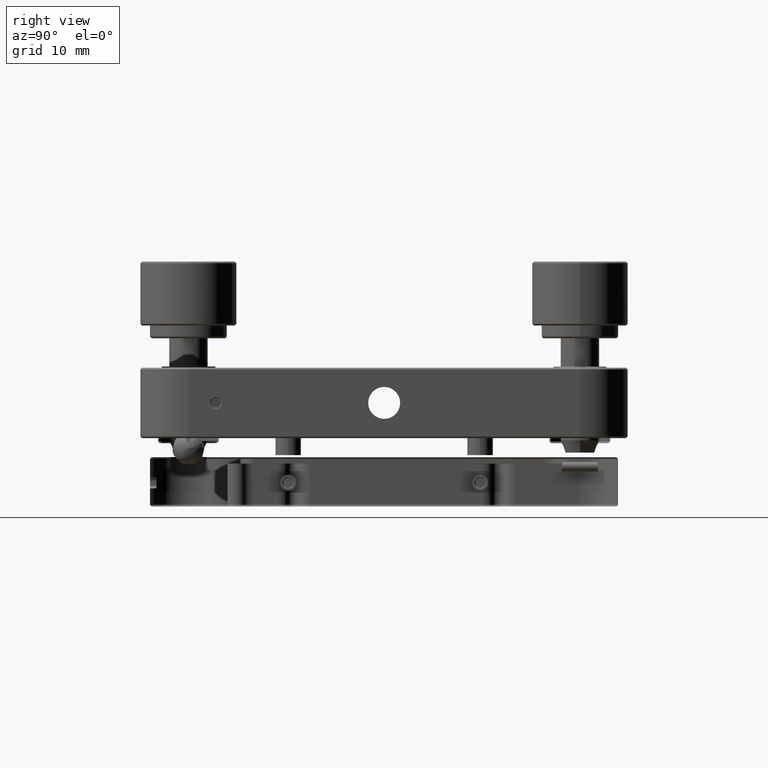
[diagram: clean part render]
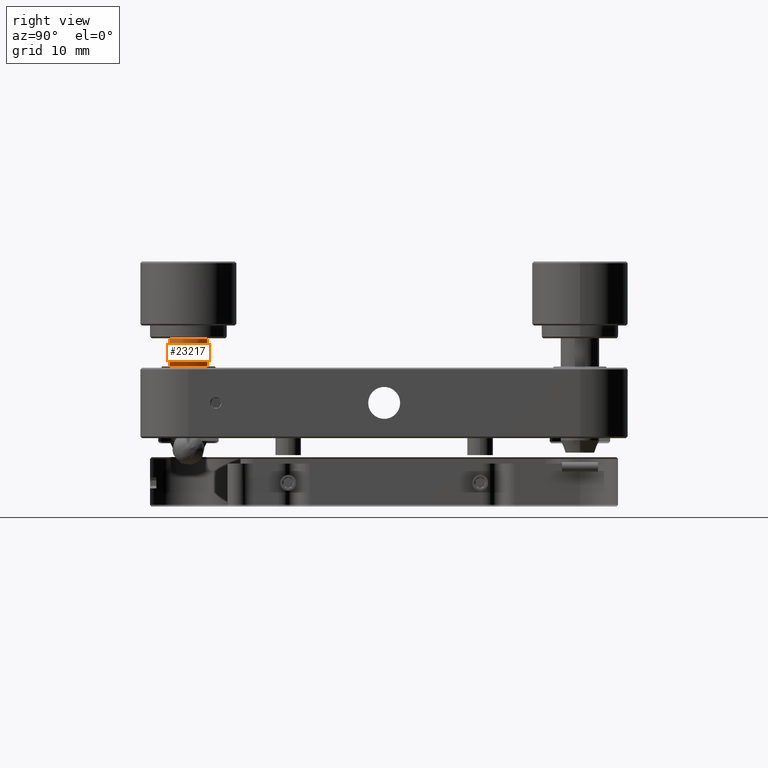
[diagram: same view with one face highlighted and labeled with its STEP entity id]
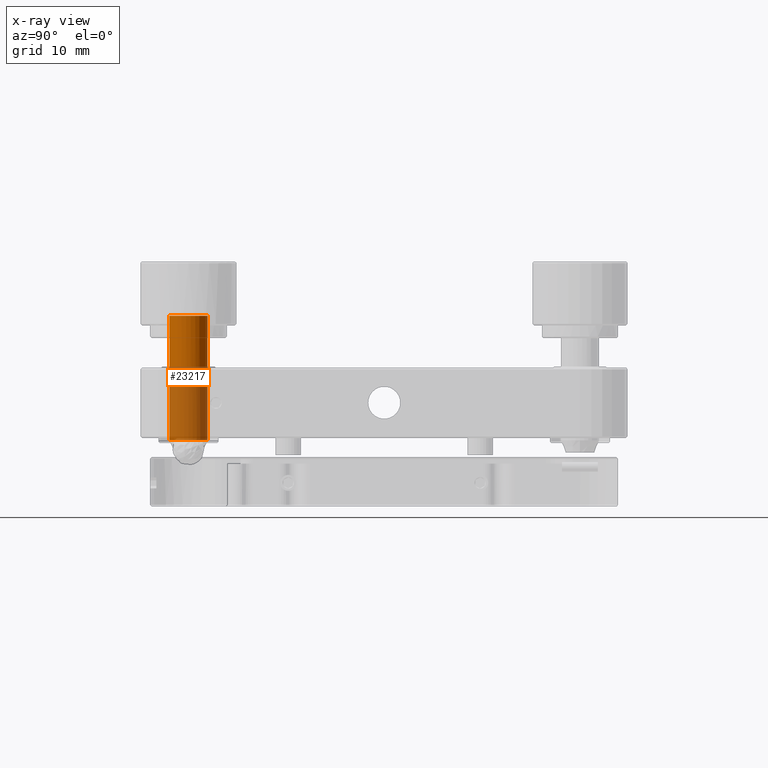
[diagram: x-ray of the same camera — body ghosted, the highlighted face saturated]
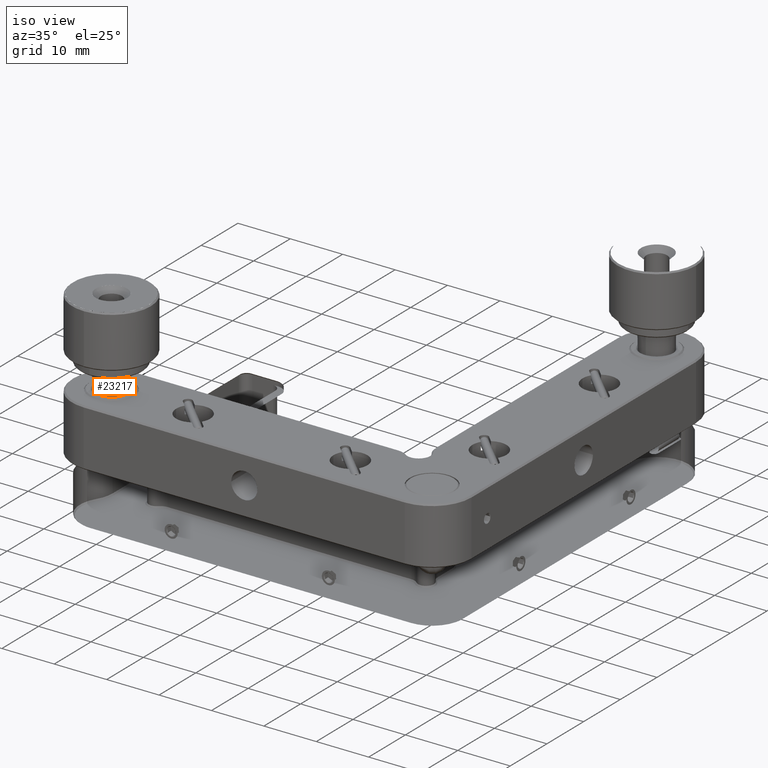
[diagram: same view with one face highlighted and labeled with its STEP entity id]
A machine part, right view. The second image highlights one B-rep face of the part: STEP entity #23217.
The next image is the same camera in x-ray: the body ghosted, the highlighted face saturated — about 58% of this face is hidden behind the body in this view.
A second angle (iso view) of the same face is appended — the face is thin or edge-on in the first view.
In plain terms, the highlighted cylindrical surface (edge-blend (fillet) strip) has radius 3 mm, axis along (0, 0, -1).
Its self-contained STEP definition (entity closure, byte-faithful):
#869 = CARTESIAN_POINT ( 'NONE',  ( -32.10819322445520640, -32.83355427905574686, 35.88175386970149816 ) ) ;
#1902 = CIRCLE ( 'NONE', #14998, 3.000000000000054623 ) ;
#2039 = EDGE_CURVE ( 'NONE', #38784, #31313, #7535, .T. ) ;
#3124 = ORIENTED_EDGE ( 'NONE', *, *, #2039, .T. ) ;
#3450 = LINE ( 'NONE', #17963, #62330 ) ;
#6913 = DIRECTION ( 'NONE',  ( 6.488294028016869729E-32, 2.713385605083469192E-31, -1.000000000000000000 ) ) ;
#7113 = CARTESIAN_POINT ( 'NONE',  ( -32.10819322445520640, -32.83355427905574686, 35.88175386970149816 ) ) ;
#7535 = LINE ( 'NONE', #12574, #10316 ) ;
#7718 = CARTESIAN_POINT ( 'NONE',  ( -29.10819322444095292, -32.83355427905574686, 35.88175386970149816 ) ) ;
#10316 = VECTOR ( 'NONE', #6913, 1000.000000000000000 ) ;
#11481 = AXIS2_PLACEMENT_3D ( 'NONE', #869, #24552, #39378 ) ;
#12574 = CARTESIAN_POINT ( 'NONE',  ( -32.10819322445520640, -35.83355427905580370, 55.85175386970120570 ) ) ;
#14745 = CARTESIAN_POINT ( 'NONE',  ( -32.10819322445520640, -32.83355427905574686, 55.85175386970120570 ) ) ;
#14998 = AXIS2_PLACEMENT_3D ( 'NONE', #49452, #40598, #54494 ) ;
#17963 = CARTESIAN_POINT ( 'NONE',  ( -32.10819322445520640, -29.83355427905569002, 55.85175386970120570 ) ) ;
#18234 = EDGE_CURVE ( 'NONE', #31313, #57252, #50646, .T. ) ;
#19344 = AXIS2_PLACEMENT_3D ( 'NONE', #7113, #40597, #26997 ) ;
#22301 = ORIENTED_EDGE ( 'NONE', *, *, #56247, .F. ) ;
#23217 = ADVANCED_FACE ( 'NONE', ( #52654 ), #44970, .T. ) ;
#24552 = DIRECTION ( 'NONE',  ( -6.488294028016869729E-32, -2.713385605083469629E-31, 1.000000000000000000 ) ) ;
#25395 = EDGE_CURVE ( 'NONE', #57252, #60964, #46797, .T. ) ;
#26931 = CARTESIAN_POINT ( 'NONE',  ( -32.10819322445520640, -35.83355427905580370, 35.88175386970149816 ) ) ;
#26997 = DIRECTION ( 'NONE',  ( 0.000000000000000000, 1.000000000000000000, 0.000000000000000000 ) ) ;
#27745 = DIRECTION ( 'NONE',  ( 6.488294028016869729E-32, 2.713385605083469192E-31, -1.000000000000000000 ) ) ;
#31313 = VERTEX_POINT ( 'NONE', #26931 ) ;
#32343 = VERTEX_POINT ( 'NONE', #35401 ) ;
#33389 = DIRECTION ( 'NONE',  ( 6.488294028016869729E-32, 2.713385605083469629E-31, -1.000000000000000000 ) ) ;
#33604 = CARTESIAN_POINT ( 'NONE',  ( -32.10819322445520640, -29.83355427905569002, 35.88175386970149816 ) ) ;
#34010 = DIRECTION ( 'NONE',  ( 0.000000000000000000, 1.000000000000000000, 0.000000000000000000 ) ) ;
#34548 = EDGE_LOOP ( 'NONE', ( #43369, #3124, #40794, #39902, #22301 ) ) ;
#34951 = CARTESIAN_POINT ( 'NONE',  ( -32.10819322445520640, -35.83355427905580370, 55.35175386970120570 ) ) ;
#35401 = CARTESIAN_POINT ( 'NONE',  ( -32.10819322445520640, -29.83355427905569002, 55.35175386970120570 ) ) ;
#38784 = VERTEX_POINT ( 'NONE', #34951 ) ;
#39378 = DIRECTION ( 'NONE',  ( 0.000000000000000000, 1.000000000000000000, 0.000000000000000000 ) ) ;
#39902 = ORIENTED_EDGE ( 'NONE', *, *, #25395, .T. ) ;
#40597 = DIRECTION ( 'NONE',  ( -6.488294028016869729E-32, -2.713385605083469629E-31, 1.000000000000000000 ) ) ;
#40598 = DIRECTION ( 'NONE',  ( 6.488294028016869729E-32, 2.713385605083469629E-31, -1.000000000000000000 ) ) ;
#40794 = ORIENTED_EDGE ( 'NONE', *, *, #18234, .T. ) ;
#42687 = AXIS2_PLACEMENT_3D ( 'NONE', #14745, #33389, #34010 ) ;
#43369 = ORIENTED_EDGE ( 'NONE', *, *, #60194, .T. ) ;
#44970 = CYLINDRICAL_SURFACE ( 'NONE', #42687, 3.000000000000054623 ) ;
#46797 = CIRCLE ( 'NONE', #11481, 3.000000000000054623 ) ;
#49452 = CARTESIAN_POINT ( 'NONE',  ( -32.10819322445520640, -32.83355427905574686, 55.35175386970120570 ) ) ;
#50646 = CIRCLE ( 'NONE', #19344, 3.000000000000054623 ) ;
#52654 = FACE_OUTER_BOUND ( 'NONE', #34548, .T. ) ;
#54494 = DIRECTION ( 'NONE',  ( 0.000000000000000000, 1.000000000000000000, 0.000000000000000000 ) ) ;
#56247 = EDGE_CURVE ( 'NONE', #32343, #60964, #3450, .T. ) ;
#57252 = VERTEX_POINT ( 'NONE', #7718 ) ;
#60194 = EDGE_CURVE ( 'NONE', #32343, #38784, #1902, .T. ) ;
#60964 = VERTEX_POINT ( 'NONE', #33604 ) ;
#62330 = VECTOR ( 'NONE', #27745, 1000.000000000000000 ) ;